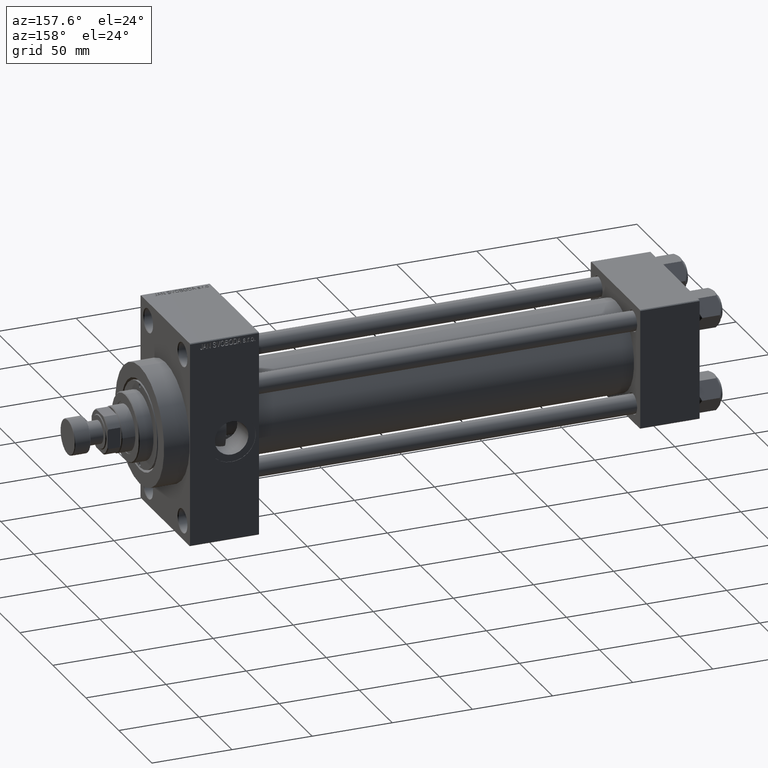
[diagram: clean part render]
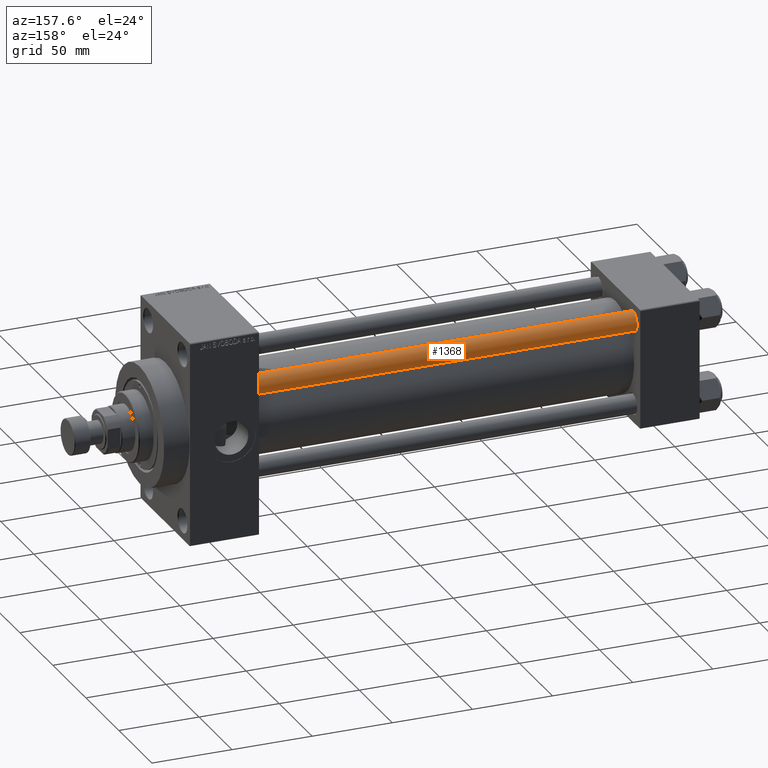
[diagram: same view with one face highlighted and labeled with its STEP entity id]
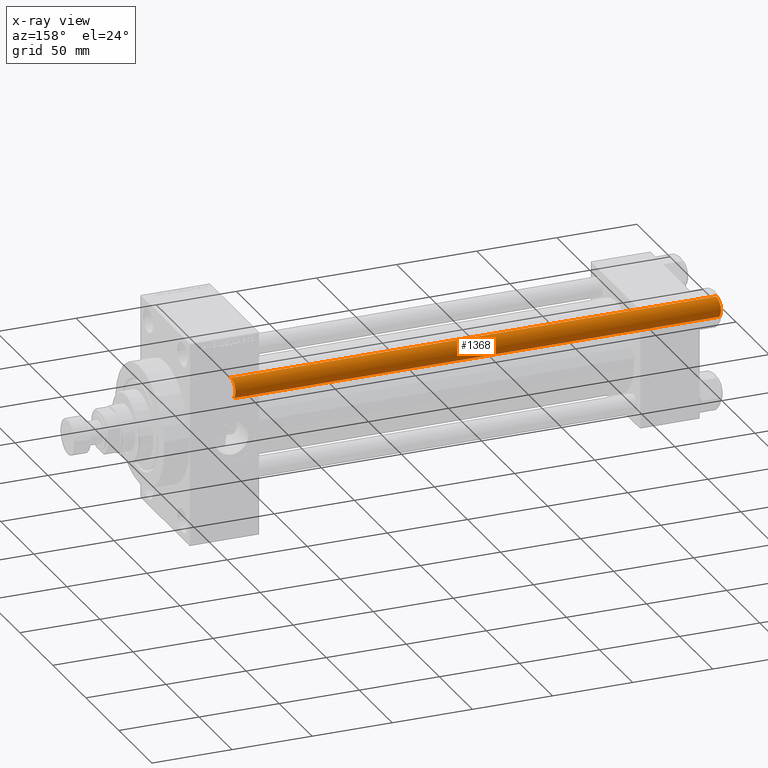
[diagram: x-ray of the same camera — body ghosted, the highlighted face saturated]
A machine part, auxiliary view. The second image highlights one B-rep face of the part: STEP entity #1368.
The next image is the same camera in x-ray: the body ghosted, the highlighted face saturated — about 0% of this face is hidden behind the body in this view.
In plain terms, the highlighted cylindrical surface (edge-blend (fillet) strip) has radius 6 mm, axis along (-1, -0, 0).
Its self-contained STEP definition (entity closure, byte-faithful):
#828 = VERTEX_POINT ( 'NONE', #43572 ) ;
#900 = CARTESIAN_POINT ( 'NONE',  ( 6.000000000000000888, 7.347880794884120722E-16, 0.4999999999999449329 ) ) ;
#1368 = ADVANCED_FACE ( 'NONE', ( #35228 ), #10042, .T. ) ;
#3238 = LINE ( 'NONE', #32759, #26825 ) ;
#4850 = AXIS2_PLACEMENT_3D ( 'NONE', #24430, #13078, #35327 ) ;
#8971 = EDGE_CURVE ( 'NONE', #828, #33602, #38853, .T. ) ;
#10042 = CYLINDRICAL_SURFACE ( 'NONE', #23260, 6.000000000000000888 ) ;
#10066 = DIRECTION ( 'NONE',  ( -0.000000000000000000, -0.000000000000000000, 1.000000000000000000 ) ) ;
#10617 = AXIS2_PLACEMENT_3D ( 'NONE', #14412, #10066, #17547 ) ;
#11531 = ORIENTED_EDGE ( 'NONE', *, *, #36843, .F. ) ;
#12174 = DIRECTION ( 'NONE',  ( -0.000000000000000000, -0.000000000000000000, -1.000000000000000000 ) ) ;
#13078 = DIRECTION ( 'NONE',  ( 0.000000000000000000, 0.000000000000000000, -1.000000000000000000 ) ) ;
#14412 = CARTESIAN_POINT ( 'NONE',  ( 0.000000000000000000, 0.000000000000000000, 0.4999999999999449329 ) ) ;
#17279 = EDGE_LOOP ( 'NONE', ( #17985, #19429, #36873, #11531 ) ) ;
#17543 = CARTESIAN_POINT ( 'NONE',  ( -6.000000000000000888, 0.000000000000000000, 304.0000000000000000 ) ) ;
#17547 = DIRECTION ( 'NONE',  ( 1.000000000000000000, 0.000000000000000000, 0.000000000000000000 ) ) ;
#17985 = ORIENTED_EDGE ( 'NONE', *, *, #8971, .T. ) ;
#19429 = ORIENTED_EDGE ( 'NONE', *, *, #23117, .T. ) ;
#19659 = VERTEX_POINT ( 'NONE', #36333 ) ;
#21192 = LINE ( 'NONE', #17543, #28705 ) ;
#23117 = EDGE_CURVE ( 'NONE', #33602, #35693, #3238, .T. ) ;
#23260 = AXIS2_PLACEMENT_3D ( 'NONE', #46387, #31598, #32065 ) ;
#24430 = CARTESIAN_POINT ( 'NONE',  ( 0.000000000000000000, 0.000000000000000000, 303.5000000000000000 ) ) ;
#25029 = EDGE_CURVE ( 'NONE', #35693, #19659, #31477, .T. ) ;
#26825 = VECTOR ( 'NONE', #12174, 1000.000000000000000 ) ;
#28705 = VECTOR ( 'NONE', #37160, 1000.000000000000000 ) ;
#31477 = CIRCLE ( 'NONE', #10617, 6.000000000000000888 ) ;
#31598 = DIRECTION ( 'NONE',  ( -0.000000000000000000, -0.000000000000000000, -1.000000000000000000 ) ) ;
#32065 = DIRECTION ( 'NONE',  ( -1.000000000000000000, 0.000000000000000000, 0.000000000000000000 ) ) ;
#32759 = CARTESIAN_POINT ( 'NONE',  ( 6.000000000000000888, 7.347880794884120722E-16, 304.0000000000000000 ) ) ;
#33602 = VERTEX_POINT ( 'NONE', #40235 ) ;
#35228 = FACE_OUTER_BOUND ( 'NONE', #17279, .T. ) ;
#35327 = DIRECTION ( 'NONE',  ( 1.000000000000000000, 0.000000000000000000, 0.000000000000000000 ) ) ;
#35693 = VERTEX_POINT ( 'NONE', #900 ) ;
#36333 = CARTESIAN_POINT ( 'NONE',  ( -6.000000000000000888, 0.000000000000000000, 0.4999999999999449329 ) ) ;
#36843 = EDGE_CURVE ( 'NONE', #828, #19659, #21192, .T. ) ;
#36873 = ORIENTED_EDGE ( 'NONE', *, *, #25029, .T. ) ;
#37160 = DIRECTION ( 'NONE',  ( -0.000000000000000000, -0.000000000000000000, -1.000000000000000000 ) ) ;
#38853 = CIRCLE ( 'NONE', #4850, 6.000000000000000888 ) ;
#40235 = CARTESIAN_POINT ( 'NONE',  ( 6.000000000000000888, 7.347880794884120722E-16, 303.5000000000000000 ) ) ;
#43572 = CARTESIAN_POINT ( 'NONE',  ( -6.000000000000000888, 0.000000000000000000, 303.5000000000000000 ) ) ;
#46387 = CARTESIAN_POINT ( 'NONE',  ( 0.000000000000000000, 0.000000000000000000, 304.0000000000000000 ) ) ;